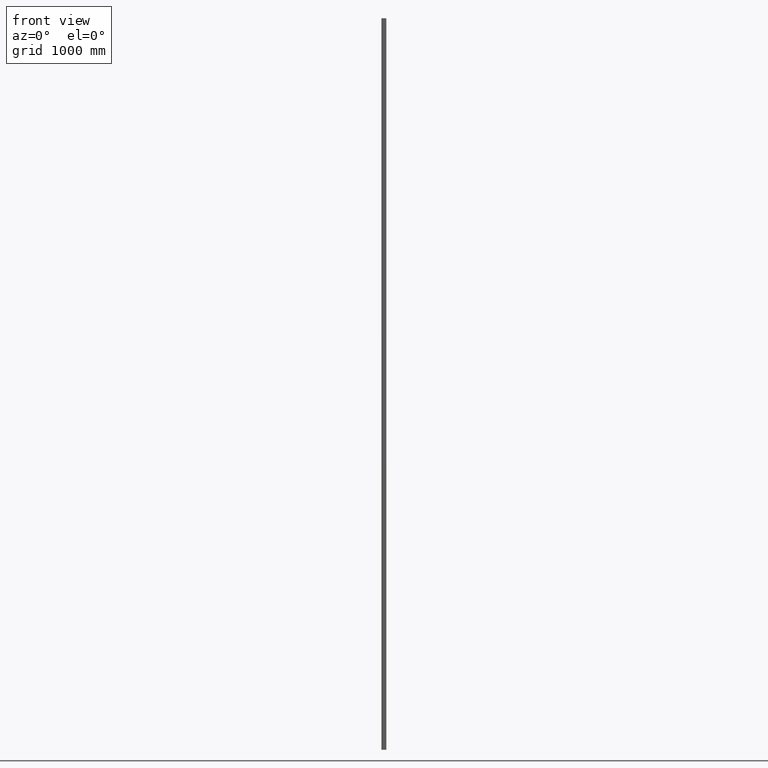
[diagram: clean part render]
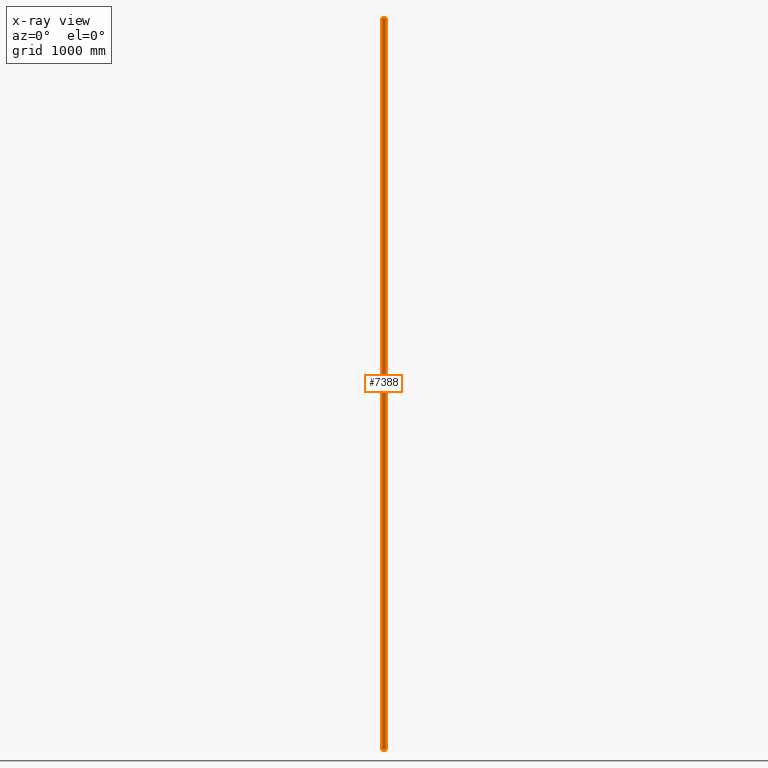
[diagram: x-ray — body ghosted, one internal face saturated and labeled with its STEP entity id]
A machine part, front view, then the same camera in x-ray: the body is ghosted and one INTERNAL B-rep face — a face not visible from any outside direction — is saturated and labeled: STEP entity #7388.
In plain terms, the highlighted planar face has unit normal (0, 1, 0).
Its self-contained STEP definition (entity closure, byte-faithful):
#881 = CARTESIAN_POINT ( 'NONE',  ( -15.49999999999999289, -17.00000000000000000, 3000.000000000000000 ) ) ;
#1158 = CARTESIAN_POINT ( 'NONE',  ( -15.49999999999999289, -17.00000000000000000, -3000.000000000000000 ) ) ;
#1672 = DIRECTION ( 'NONE',  ( 1.000000000000000000, 0.000000000000000000, 0.000000000000000000 ) ) ;
#1986 = VECTOR ( 'NONE', #5181, 1000.000000000000000 ) ;
#3255 = EDGE_CURVE ( 'NONE', #6491, #7272, #11967, .T. ) ;
#3712 = EDGE_LOOP ( 'NONE', ( #4329, #13219, #4396, #5255 ) ) ;
#4329 = ORIENTED_EDGE ( 'NONE', *, *, #3255, .F. ) ;
#4396 = ORIENTED_EDGE ( 'NONE', *, *, #9516, .T. ) ;
#4441 = VECTOR ( 'NONE', #1672, 1000.000000000000000 ) ;
#5181 = DIRECTION ( 'NONE',  ( 1.000000000000000000, 0.000000000000000000, 0.000000000000000000 ) ) ;
#5255 = ORIENTED_EDGE ( 'NONE', *, *, #6924, .T. ) ;
#5507 = VECTOR ( 'NONE', #9866, 1000.000000000000000 ) ;
#6278 = CARTESIAN_POINT ( 'NONE',  ( -15.49999999999999289, -17.00000000000000000, -3000.000000000000000 ) ) ;
#6327 = LINE ( 'NONE', #8807, #4441 ) ;
#6491 = VERTEX_POINT ( 'NONE', #1158 ) ;
#6924 = EDGE_CURVE ( 'NONE', #13768, #7272, #11913, .T. ) ;
#7272 = VERTEX_POINT ( 'NONE', #10311 ) ;
#7388 = ADVANCED_FACE ( 'NONE', ( #10944 ), #14403, .T. ) ;
#8270 = DIRECTION ( 'NONE',  ( 0.000000000000000000, -0.000000000000000000, 1.000000000000000000 ) ) ;
#8494 = EDGE_CURVE ( 'NONE', #11491, #6491, #9722, .T. ) ;
#8807 = CARTESIAN_POINT ( 'NONE',  ( -15.49999999999999289, -17.00000000000000000, 3000.000000000000000 ) ) ;
#9202 = CARTESIAN_POINT ( 'NONE',  ( 15.50000000000001421, -16.99999999999999645, 3000.000000000000000 ) ) ;
#9516 = EDGE_CURVE ( 'NONE', #11491, #13768, #6327, .T. ) ;
#9552 = DIRECTION ( 'NONE',  ( 0.000000000000000000, 1.000000000000000000, 0.000000000000000000 ) ) ;
#9722 = LINE ( 'NONE', #14303, #14255 ) ;
#9866 = DIRECTION ( 'NONE',  ( -0.000000000000000000, -0.000000000000000000, -1.000000000000000000 ) ) ;
#10311 = CARTESIAN_POINT ( 'NONE',  ( 15.50000000000001421, -16.99999999999999645, -3000.000000000000000 ) ) ;
#10944 = FACE_OUTER_BOUND ( 'NONE', #3712, .T. ) ;
#11491 = VERTEX_POINT ( 'NONE', #881 ) ;
#11913 = LINE ( 'NONE', #12344, #5507 ) ;
#11967 = LINE ( 'NONE', #6278, #1986 ) ;
#12288 = AXIS2_PLACEMENT_3D ( 'NONE', #13081, #9552, #8270 ) ;
#12344 = CARTESIAN_POINT ( 'NONE',  ( 15.50000000000001421, -16.99999999999999645, 3000.000000000000000 ) ) ;
#13081 = CARTESIAN_POINT ( 'NONE',  ( -15.49999999999999289, -17.00000000000000000, 3000.000000000000000 ) ) ;
#13219 = ORIENTED_EDGE ( 'NONE', *, *, #8494, .F. ) ;
#13768 = VERTEX_POINT ( 'NONE', #9202 ) ;
#14255 = VECTOR ( 'NONE', #15525, 1000.000000000000000 ) ;
#14303 = CARTESIAN_POINT ( 'NONE',  ( -15.49999999999999289, -17.00000000000000000, 3000.000000000000000 ) ) ;
#14403 = PLANE ( 'NONE',  #12288 ) ;
#15525 = DIRECTION ( 'NONE',  ( -0.000000000000000000, -0.000000000000000000, -1.000000000000000000 ) ) ;